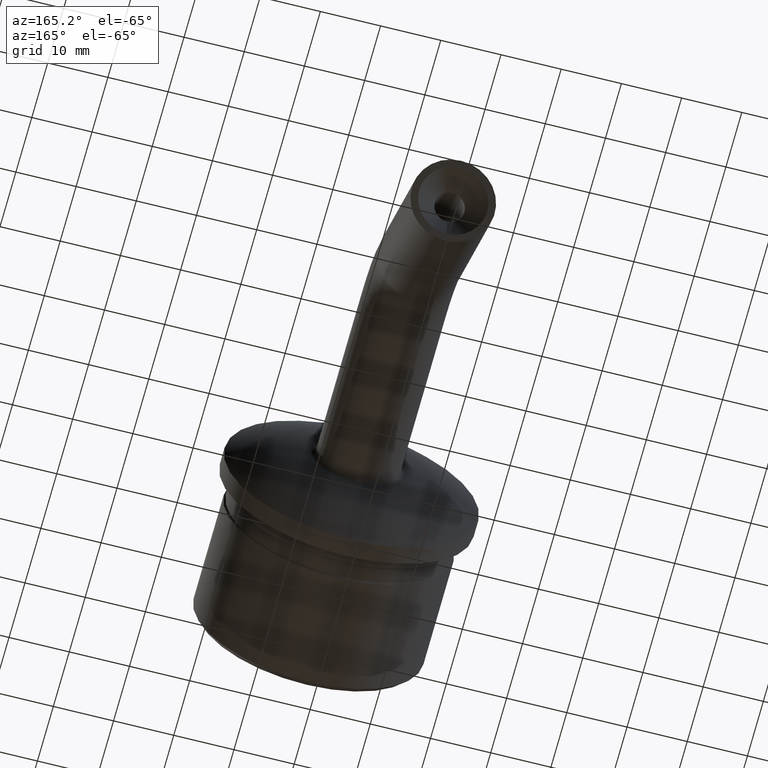
[diagram: clean part render]
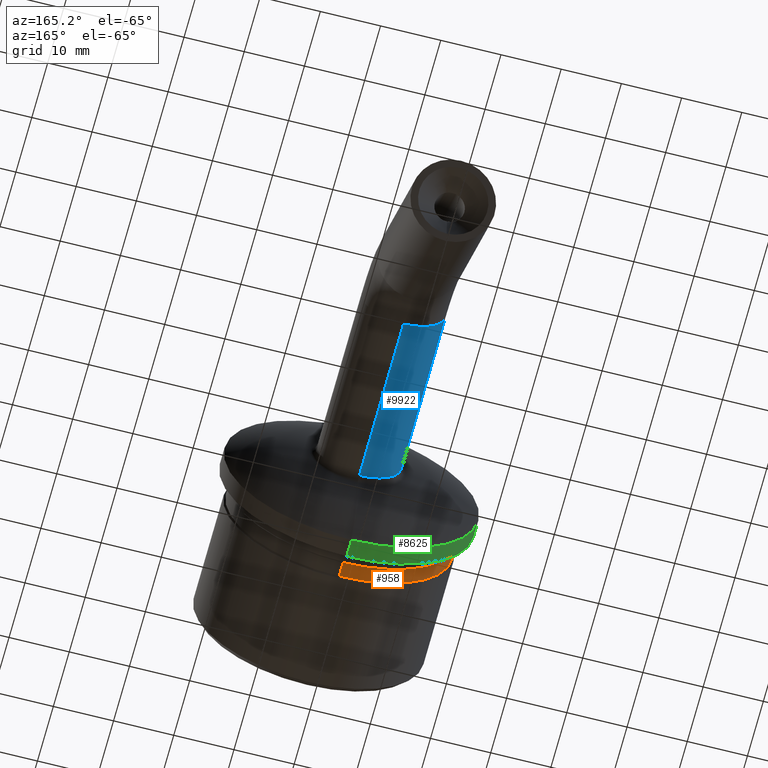
[diagram: same view with three faces highlighted in distinct colors, each labeled with its STEP entity id]
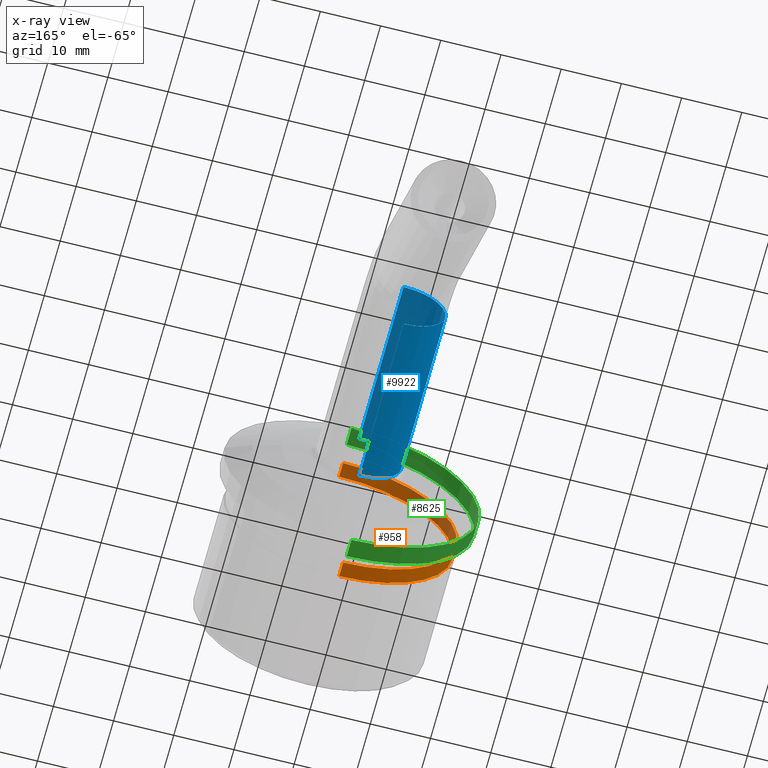
[diagram: x-ray of the same camera — body ghosted, the three highlighted faces saturated]
A machine part, auxiliary view with three faces highlighted in distinct colors.
The next image is the same camera in x-ray (body ghosted, the three faces saturated) — at least one of them is partly hidden behind the body in this view.
Their STEP definitions:

[orange] entity #958 — the highlighted cylindrical surface (partial cylindrical patch) has radius 18.9 mm, axis along (-0, 1, -0).
#226 = AXIS2_PLACEMENT_3D ( 'NONE', #1308, #9263, #4737 ) ;
#877 = FACE_OUTER_BOUND ( 'NONE', #4416, .T. ) ;
#958 = ADVANCED_FACE ( 'NONE', ( #877 ), #7427, .T. ) ;
#1308 = CARTESIAN_POINT ( 'NONE',  ( 0.000000000000000000, -9.249999999999987566, 4.854849810905571522E-16 ) ) ;
#1567 = CARTESIAN_POINT ( 'NONE',  ( 0.000000000000000000, -9.249999999999985789, 18.89999999999999858 ) ) ;
#1667 = VERTEX_POINT ( 'NONE', #12600 ) ;
#3602 = ORIENTED_EDGE ( 'NONE', *, *, #9762, .T. ) ;
#3670 = DIRECTION ( 'NONE',  ( 0.000000000000000000, 5.248486282060084733E-17, 1.000000000000000000 ) ) ;
#3828 = AXIS2_PLACEMENT_3D ( 'NONE', #4240, #9715, #6315 ) ;
#3853 = ORIENTED_EDGE ( 'NONE', *, *, #7129, .T. ) ;
#4098 = ORIENTED_EDGE ( 'NONE', *, *, #6498, .F. ) ;
#4240 = CARTESIAN_POINT ( 'NONE',  ( 0.000000000000000000, -11.74999999999998224, 6.166971381420590826E-16 ) ) ;
#4416 = EDGE_LOOP ( 'NONE', ( #4098, #9303, #3853, #3602 ) ) ;
#4737 = DIRECTION ( 'NONE',  ( 0.000000000000000000, -9.178431089824376422E-17, -1.000000000000000000 ) ) ;
#5210 = DIRECTION ( 'NONE',  ( -0.000000000000000000, 1.000000000000000000, -5.248486282060084733E-17 ) ) ;
#6152 = EDGE_CURVE ( 'NONE', #9481, #1667, #9773, .T. ) ;
#6226 = DIRECTION ( 'NONE',  ( -0.000000000000000000, 1.000000000000000000, -5.248486282060084733E-17 ) ) ;
#6315 = DIRECTION ( 'NONE',  ( 0.000000000000000000, 9.178431089824376422E-17, 1.000000000000000000 ) ) ;
#6498 = EDGE_CURVE ( 'NONE', #9481, #10600, #12437, .T. ) ;
#7070 = VECTOR ( 'NONE', #5210, 1000.000000000000000 ) ;
#7129 = EDGE_CURVE ( 'NONE', #1667, #13326, #8686, .T. ) ;
#7193 = CARTESIAN_POINT ( 'NONE',  ( 2.314582450388497613E-15, -9.919639073093559228E-16, -18.89999999999999858 ) ) ;
#7427 = CYLINDRICAL_SURFACE ( 'NONE', #9516, 18.89999999999999858 ) ;
#7508 = CARTESIAN_POINT ( 'NONE',  ( 2.314582450388497613E-15, -11.74999999999998401, -18.89999999999999858 ) ) ;
#7981 = CARTESIAN_POINT ( 'NONE',  ( 0.000000000000000000, 0.000000000000000000, 0.000000000000000000 ) ) ;
#8686 = LINE ( 'NONE', #14262, #12061 ) ;
#9263 = DIRECTION ( 'NONE',  ( 0.000000000000000000, -1.000000000000000000, 5.248486282060053302E-17 ) ) ;
#9303 = ORIENTED_EDGE ( 'NONE', *, *, #6152, .T. ) ;
#9481 = VERTEX_POINT ( 'NONE', #7508 ) ;
#9516 = AXIS2_PLACEMENT_3D ( 'NONE', #7981, #12531, #3670 ) ;
#9715 = DIRECTION ( 'NONE',  ( -0.000000000000000000, 1.000000000000000000, -5.248486282060066244E-17 ) ) ;
#9762 = EDGE_CURVE ( 'NONE', #13326, #10600, #10087, .T. ) ;
#9773 = CIRCLE ( 'NONE', #3828, 18.89999999999999858 ) ;
#10087 = CIRCLE ( 'NONE', #226, 18.89999999999999858 ) ;
#10600 = VERTEX_POINT ( 'NONE', #10987 ) ;
#10987 = CARTESIAN_POINT ( 'NONE',  ( 2.314582450388497613E-15, -9.249999999999989342, -18.89999999999999858 ) ) ;
#12061 = VECTOR ( 'NONE', #6226, 1000.000000000000000 ) ;
#12437 = LINE ( 'NONE', #7193, #7070 ) ;
#12531 = DIRECTION ( 'NONE',  ( -0.000000000000000000, 1.000000000000000000, -5.248486282060084733E-17 ) ) ;
#12600 = CARTESIAN_POINT ( 'NONE',  ( 0.000000000000000000, -11.74999999999998046, 18.89999999999999858 ) ) ;
#13326 = VERTEX_POINT ( 'NONE', #1567 ) ;
#14262 = CARTESIAN_POINT ( 'NONE',  ( 0.000000000000000000, 9.919639073093559228E-16, 18.89999999999999858 ) ) ;

[blue] entity #9922 — the highlighted cylindrical surface (partial cylindrical patch) has radius 7 mm, axis along (-0, -1, -0).
#186 = DIRECTION ( 'NONE',  ( 0.000000000000000000, 1.000000000000000000, 0.000000000000000000 ) ) ;
#713 = EDGE_CURVE ( 'NONE', #1232, #2024, #10501, .T. ) ;
#865 = VECTOR ( 'NONE', #13123, 1000.000000000000000 ) ;
#1157 = AXIS2_PLACEMENT_3D ( 'NONE', #6007, #186, #2431 ) ;
#1232 = VERTEX_POINT ( 'NONE', #1914 ) ;
#1914 = CARTESIAN_POINT ( 'NONE',  ( 0.000000000000000000, 0.9822670722083319816, -7.000000000000000888 ) ) ;
#2024 = VERTEX_POINT ( 'NONE', #12823 ) ;
#2240 = AXIS2_PLACEMENT_3D ( 'NONE', #5064, #2685, #3834 ) ;
#2431 = DIRECTION ( 'NONE',  ( 0.000000000000000000, 0.000000000000000000, 1.000000000000000000 ) ) ;
#2685 = DIRECTION ( 'NONE',  ( -0.000000000000000000, -1.000000000000000000, -2.481712543162696875E-17 ) ) ;
#2848 = CIRCLE ( 'NONE', #1157, 7.000000000000000000 ) ;
#3338 = DIRECTION ( 'NONE',  ( -0.000000000000000000, -1.000000000000000000, -2.481712543162696875E-17 ) ) ;
#3392 = CARTESIAN_POINT ( 'NONE',  ( 8.572527594031473190E-16, 28.74239912270041231, 7.000000000000000888 ) ) ;
#3485 = ORIENTED_EDGE ( 'NONE', *, *, #713, .T. ) ;
#3834 = DIRECTION ( 'NONE',  ( 0.000000000000000000, 0.000000000000000000, -1.000000000000000000 ) ) ;
#4156 = CARTESIAN_POINT ( 'NONE',  ( 8.572527594031473190E-16, 28.74239912270041231, 7.000000000000000888 ) ) ;
#4224 = EDGE_CURVE ( 'NONE', #11437, #12604, #2848, .T. ) ;
#4555 = DIRECTION ( 'NONE',  ( 0.000000000000000000, -6.195440985631454085E-17, 1.000000000000000000 ) ) ;
#4756 = CARTESIAN_POINT ( 'NONE',  ( 0.000000000000000000, 0.9822670722083315376, 2.437704513835117452E-17 ) ) ;
#5061 = FACE_OUTER_BOUND ( 'NONE', #9222, .T. ) ;
#5064 = CARTESIAN_POINT ( 'NONE',  ( 0.000000000000000000, 28.74239912270041231, 7.133037242339410149E-16 ) ) ;
#5419 = CYLINDRICAL_SURFACE ( 'NONE', #2240, 7.000000000000000000 ) ;
#5492 = ORIENTED_EDGE ( 'NONE', *, *, #7541, .T. ) ;
#5838 = EDGE_CURVE ( 'NONE', #12604, #2024, #11023, .T. ) ;
#6007 = CARTESIAN_POINT ( 'NONE',  ( 0.000000000000000000, 28.74239912270041231, 7.133037242339410149E-16 ) ) ;
#6173 = LINE ( 'NONE', #14594, #12425 ) ;
#7109 = DIRECTION ( 'NONE',  ( -0.000000000000000000, 1.000000000000000000, 7.364090267318114627E-17 ) ) ;
#7326 = ORIENTED_EDGE ( 'NONE', *, *, #5838, .F. ) ;
#7541 = EDGE_CURVE ( 'NONE', #11437, #1232, #6173, .T. ) ;
#8110 = ORIENTED_EDGE ( 'NONE', *, *, #4224, .F. ) ;
#9222 = EDGE_LOOP ( 'NONE', ( #7326, #8110, #5492, #3485 ) ) ;
#9922 = ADVANCED_FACE ( 'NONE', ( #5061 ), #5419, .T. ) ;
#10305 = AXIS2_PLACEMENT_3D ( 'NONE', #4756, #7109, #4555 ) ;
#10501 = CIRCLE ( 'NONE', #10305, 7.000000000000000000 ) ;
#11023 = LINE ( 'NONE', #4156, #865 ) ;
#11437 = VERTEX_POINT ( 'NONE', #12656 ) ;
#12425 = VECTOR ( 'NONE', #3338, 1000.000000000000000 ) ;
#12604 = VERTEX_POINT ( 'NONE', #3392 ) ;
#12656 = CARTESIAN_POINT ( 'NONE',  ( 0.000000000000000000, 28.74239912270041231, -6.999999999999999112 ) ) ;
#12823 = CARTESIAN_POINT ( 'NONE',  ( 8.572527594031473190E-16, 0.9822670722083310935, 7.000000000000000000 ) ) ;
#13123 = DIRECTION ( 'NONE',  ( -0.000000000000000000, -1.000000000000000000, -2.481712543162696875E-17 ) ) ;
#14594 = CARTESIAN_POINT ( 'NONE',  ( 0.000000000000000000, 28.74239912270041231, -6.999999999999999112 ) ) ;

[green] entity #8625 — the highlighted cylindrical surface (partial cylindrical patch) has radius 21.2 mm, axis along (-0, 1, 0).
#178 = DIRECTION ( 'NONE',  ( -0.000000000000000000, 1.000000000000000000, 1.224646799147353207E-16 ) ) ;
#233 = EDGE_CURVE ( 'NONE', #12144, #9454, #13637, .T. ) ;
#1465 = ORIENTED_EDGE ( 'NONE', *, *, #1869, .T. ) ;
#1869 = EDGE_CURVE ( 'NONE', #9454, #11669, #8401, .T. ) ;
#2081 = DIRECTION ( 'NONE',  ( -0.000000000000000000, 1.000000000000000000, 1.224646799147353207E-16 ) ) ;
#2130 = CARTESIAN_POINT ( 'NONE',  ( 0.000000000000000000, -2.596251214192388770E-15, 21.19999999999999929 ) ) ;
#3491 = ORIENTED_EDGE ( 'NONE', *, *, #3642, .F. ) ;
#3642 = EDGE_CURVE ( 'NONE', #12144, #5026, #9818, .T. ) ;
#3989 = CARTESIAN_POINT ( 'NONE',  ( 0.000000000000000000, -4.000000000000002665, -4.898587196589416773E-16 ) ) ;
#4117 = DIRECTION ( 'NONE',  ( 0.000000000000000000, -1.224646799147353207E-16, 1.000000000000000000 ) ) ;
#4626 = DIRECTION ( 'NONE',  ( 0.000000000000000000, -1.227398685832646557E-16, 1.000000000000000000 ) ) ;
#5026 = VERTEX_POINT ( 'NONE', #9972 ) ;
#5107 = DIRECTION ( 'NONE',  ( -0.000000000000000000, 1.000000000000000000, 1.224646799147353207E-16 ) ) ;
#5377 = VECTOR ( 'NONE', #2081, 1000.000000000000000 ) ;
#5658 = AXIS2_PLACEMENT_3D ( 'NONE', #14332, #5107, #4117 ) ;
#6780 = VECTOR ( 'NONE', #10235, 1000.000000000000000 ) ;
#7297 = EDGE_CURVE ( 'NONE', #5026, #11669, #14561, .T. ) ;
#7350 = DIRECTION ( 'NONE',  ( -0.000000000000000000, 1.000000000000000000, 1.224646799147353207E-16 ) ) ;
#7569 = CYLINDRICAL_SURFACE ( 'NONE', #5658, 21.19999999999999929 ) ;
#8401 = LINE ( 'NONE', #2130, #5377 ) ;
#8492 = CARTESIAN_POINT ( 'NONE',  ( 0.000000000000000000, -4.000000000000005329, 21.19999999999999929 ) ) ;
#8625 = ADVANCED_FACE ( 'NONE', ( #9729 ), #7569, .T. ) ;
#8732 = CARTESIAN_POINT ( 'NONE',  ( 2.596251214192388770E-15, -7.000000000000000000, -21.19999999999999929 ) ) ;
#9454 = VERTEX_POINT ( 'NONE', #14359 ) ;
#9651 = ORIENTED_EDGE ( 'NONE', *, *, #233, .T. ) ;
#9729 = FACE_OUTER_BOUND ( 'NONE', #11267, .T. ) ;
#9818 = LINE ( 'NONE', #12414, #6780 ) ;
#9972 = CARTESIAN_POINT ( 'NONE',  ( 2.596251214192388770E-15, -4.000000000000000000, -21.19999999999999929 ) ) ;
#10235 = DIRECTION ( 'NONE',  ( -0.000000000000000000, 1.000000000000000000, 1.224646799147353207E-16 ) ) ;
#10238 = AXIS2_PLACEMENT_3D ( 'NONE', #3989, #7350, #13007 ) ;
#11267 = EDGE_LOOP ( 'NONE', ( #3491, #9651, #1465, #12990 ) ) ;
#11669 = VERTEX_POINT ( 'NONE', #8492 ) ;
#12144 = VERTEX_POINT ( 'NONE', #8732 ) ;
#12414 = CARTESIAN_POINT ( 'NONE',  ( 2.596251214192388770E-15, 2.596251214192388770E-15, -21.19999999999999929 ) ) ;
#12990 = ORIENTED_EDGE ( 'NONE', *, *, #7297, .F. ) ;
#13007 = DIRECTION ( 'NONE',  ( 0.000000000000000000, -1.227398685832646557E-16, 1.000000000000000000 ) ) ;
#13637 = CIRCLE ( 'NONE', #14669, 21.19999999999999929 ) ;
#13876 = CARTESIAN_POINT ( 'NONE',  ( 0.000000000000000000, -7.000000000000002665, -8.572527594031475162E-16 ) ) ;
#14332 = CARTESIAN_POINT ( 'NONE',  ( 0.000000000000000000, 0.000000000000000000, 0.000000000000000000 ) ) ;
#14359 = CARTESIAN_POINT ( 'NONE',  ( 0.000000000000000000, -7.000000000000005329, 21.19999999999999929 ) ) ;
#14561 = CIRCLE ( 'NONE', #10238, 21.19999999999999929 ) ;
#14669 = AXIS2_PLACEMENT_3D ( 'NONE', #13876, #178, #4626 ) ;